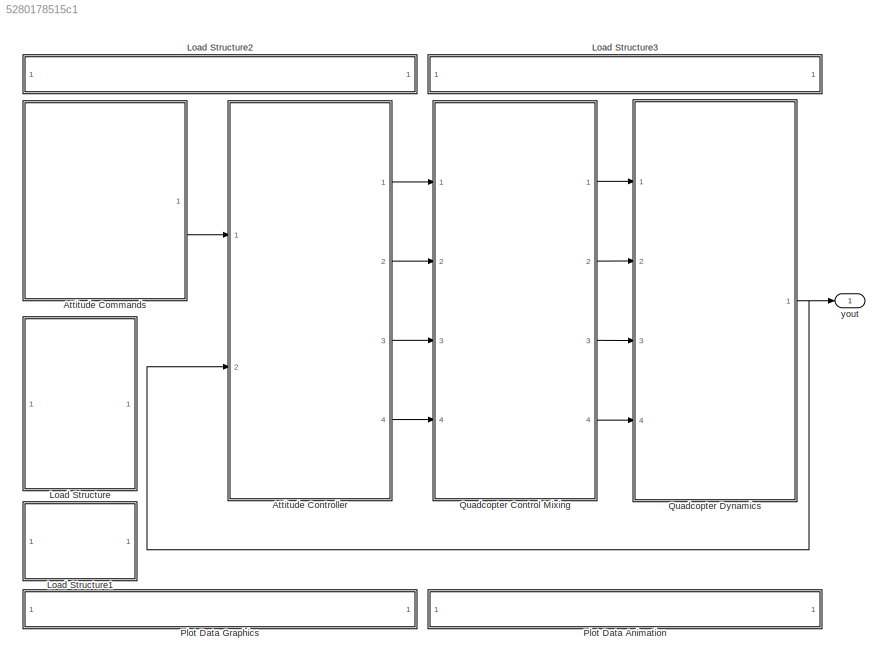
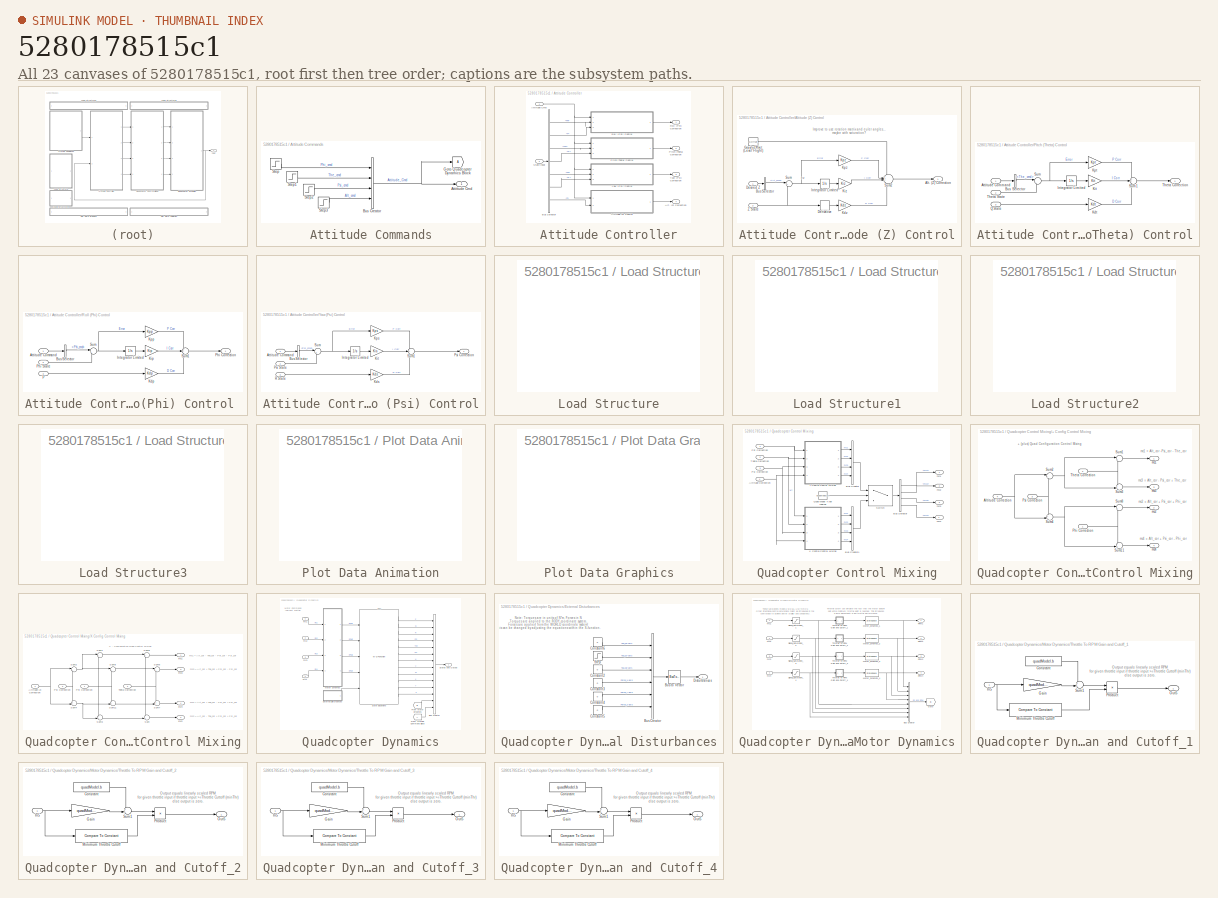
[diagram: thumbnail index - all 23 canvases of the model, root first then tree order]
MODEL slx_5280178515c1
KIND model
CONFIG AbsTol = auto
CONFIG FixedStep = 0.02
CONFIG MaxStep = 0.06
CONFIG MinStep = auto
CONFIG RelTol = 1e-3
CONFIG SampleTimeConstraint = Unconstrained
CONFIG Solver = ode45
CONFIG SolverMode = Auto
CONFIG SolverName = ode45
CONFIG StartTime = 0
CONFIG StopTime = 10
WORKSPACE source: MAT-file member
WORKSPACE MCOS: class17 (value not decoded)
BLOCK [SubSystem] Attitude Commands
  Ports = [0, 1]
  RequestExecContextInheritance = off
  Variant = off
BLOCK [Outport] Attitude Commands/Attittude Cmd
  IconDisplay = Port number
BLOCK [BusCreator] Attitude Commands/Bus Creator
  DisplayOption = bar
  InheritFromInputs = on
  Inputs = 4
  Ports = [4, 1]
BLOCK [Goto] Attitude Commands/Goto Quadcopter Dynamics Block
  TagVisibility = global
BLOCK [Step] Attitude Commands/Step
  After = -10*pi/180
  SampleTime = 0
  Time = 4
BLOCK [Step] Attitude Commands/Step1
  After = 10*pi/180
  SampleTime = 0
BLOCK [Step] Attitude Commands/Step2
  After = 45*pi/180
  SampleTime = 0
  Time = 7
BLOCK [Step] Attitude Commands/Step3
  After = 10*0.3048
  Before = 10*0.3048
  SampleTime = 0
  Time = 0
BLOCK [SubSystem] Attitude Controller
  Ports = [2, 4]
  RequestExecContextInheritance = off
  Variant = off
BLOCK [Outport] Attitude Controller/Alt. (Z) Correction
  IconDisplay = Port number
  Port = 4
BLOCK [SubSystem] Attitude Controller/Altitude (Z) Control
  Ports = [2, 1]
  RequestExecContextInheritance = off
  Variant = off
BLOCK [Outport] Attitude Controller/Altitude (Z) Control/Alt. (Z) Correction
  IconDisplay = Port number
BLOCK [BusSelector] Attitude Controller/Altitude (Z) Control/Bus Selector
  OutputSignals = Alt_cmd
  Ports = [1, 1]
BLOCK [Derivative] Attitude Controller/Altitude (Z) Control/Derivative
BLOCK [Inport] Attitude Controller/Altitude (Z) Control/Desired Z
  IconDisplay = Port number
BLOCK [Constant] Attitude Controller/Altitude (Z) Control/Gravity Offset (Level Flight)
  Value = GOffset
BLOCK [Integrator] Attitude Controller/Altitude (Z) Control/Integrator Limited
  LimitOutput = on
  LowerSaturationLimit = LSat
  Ports = [1, 1]
  UpperSaturationLimit = USat
BLOCK [Gain] Attitude Controller/Altitude (Z) Control/Kdz
  Gain = Kdz
  OutDataTypeStr = Inherit: Inherit via internal rule
  ParamDataTypeStr = Inherit: Inherit via internal rule
  SaturateOnIntegerOverflow = off
BLOCK [Gain] Attitude Controller/Altitude (Z) Control/Kiz
  Gain = Kiz
  OutDataTypeStr = Inherit: Inherit via internal rule
  ParamDataTypeStr = Inherit: Inherit via internal rule
  SaturateOnIntegerOverflow = off
BLOCK [Gain] Attitude Controller/Altitude (Z) Control/Kpz
  Gain = Kpz
  OutDataTypeStr = Inherit: Inherit via internal rule
  ParamDataTypeStr = Inherit: Inherit via internal rule
  SaturateOnIntegerOverflow = off
BLOCK [Sum] Attitude Controller/Altitude (Z) Control/Sum
  IconShape = round
  InputSameDT = off
  Inputs = |+-
  OutDataTypeStr = Inherit: Inherit via internal rule
  Ports = [2, 1]
  SaturateOnIntegerOverflow = off
BLOCK [Sum] Attitude Controller/Altitude (Z) Control/Sum2
  IconShape = round
  InputSameDT = off
  Inputs = +++-
  OutDataTypeStr = Inherit: Inherit via internal rule
  Ports = [4, 1]
  SaturateOnIntegerOverflow = off
BLOCK [Inport] Attitude Controller/Altitude (Z) Control/Z State
  IconDisplay = Port number
  Port = 2
BLOCK [Inport] Attitude Controller/Attitude Cmd
  IconDisplay = Port number
BLOCK [BusSelector] Attitude Controller/Bus Selector
  OutputSignals = Phi,P,The,Q,Psi,R,Z
  Ports = [1, 7]
BLOCK [SubSystem] Attitude Controller/Pitch (Theta) Control
  Ports = [3, 1]
  RequestExecContextInheritance = off
  Variant = off
BLOCK [Inport] Attitude Controller/Pitch (Theta) Control/Attitude Command
  IconDisplay = Port number
BLOCK [BusSelector] Attitude Controller/Pitch (Theta) Control/Bus Selector
  OutputSignals = The_cmd
  Ports = [1, 1]
BLOCK [Integrator] Attitude Controller/Pitch (Theta) Control/Integrator Limited
  LimitOutput = on
  LowerSaturationLimit = LSat
  Ports = [1, 1]
  UpperSaturationLimit = USat
BLOCK [Gain] Attitude Controller/Pitch (Theta) Control/Kdt
  Gain = Kdt
  OutDataTypeStr = Inherit: Inherit via internal rule
  ParamDataTypeStr = Inherit: Inherit via internal rule
  SaturateOnIntegerOverflow = off
BLOCK [Gain] Attitude Controller/Pitch (Theta) Control/Kit
  Gain = Kit
  OutDataTypeStr = Inherit: Inherit via internal rule
  ParamDataTypeStr = Inherit: Inherit via internal rule
  SaturateOnIntegerOverflow = off
BLOCK [Gain] Attitude Controller/Pitch (Theta) Control/Kpt
  Gain = Kpt
  OutDataTypeStr = Inherit: Inherit via internal rule
  ParamDataTypeStr = Inherit: Inherit via internal rule
  SaturateOnIntegerOverflow = off
BLOCK [Inport] Attitude Controller/Pitch (Theta) Control/Q State
  IconDisplay = Port number
  Port = 3
BLOCK [Sum] Attitude Controller/Pitch (Theta) Control/Sum
  IconShape = round
  InputSameDT = off
  Inputs = |+-
  OutDataTypeStr = Inherit: Inherit via internal rule
  Ports = [2, 1]
  SaturateOnIntegerOverflow = off
BLOCK [Sum] Attitude Controller/Pitch (Theta) Control/Sum1
  IconShape = round
  InputSameDT = off
  Inputs = ++-
  OutDataTypeStr = Inherit: Inherit via internal rule
  Ports = [3, 1]
  SaturateOnIntegerOverflow = off
BLOCK [Outport] Attitude Controller/Pitch (Theta) Control/Theta Correction
  IconDisplay = Port number
BLOCK [Inport] Attitude Controller/Pitch (Theta) Control/Theta State
  IconDisplay = Port number
  Port = 2
BLOCK [Outport] Attitude Controller/Pitch (Theta) Correction
  IconDisplay = Port number
  Port = 2
BLOCK [SubSystem] Attitude Controller/Roll (Phi) Control 
  Ports = [3, 1]
  RequestExecContextInheritance = off
  Variant = off
BLOCK [Inport] Attitude Controller/Roll (Phi) Control /Attitude Command 
  IconDisplay = Port number
BLOCK [BusSelector] Attitude Controller/Roll (Phi) Control /Bus Selector
  OutputSignals = Phi_cmd
  Ports = [1, 1]
BLOCK [Integrator] Attitude Controller/Roll (Phi) Control /Integrator Limited
  LimitOutput = on
  LowerSaturationLimit = LSat
  Ports = [1, 1]
  UpperSaturationLimit = USat
BLOCK [Gain] Attitude Controller/Roll (Phi) Control /Kdp
  Gain = Kdp
  OutDataTypeStr = Inherit: Inherit via internal rule
  ParamDataTypeStr = Inherit: Inherit via internal rule
  SaturateOnIntegerOverflow = off
BLOCK [Gain] Attitude Controller/Roll (Phi) Control /Kip
  Gain = Kip
  OutDataTypeStr = Inherit: Inherit via internal rule
  ParamDataTypeStr = Inherit: Inherit via internal rule
  SaturateOnIntegerOverflow = off
BLOCK [Gain] Attitude Controller/Roll (Phi) Control /Kpp
  Gain = Kpp
  OutDataTypeStr = Inherit: Inherit via internal rule
  ParamDataTypeStr = Inherit: Inherit via internal rule
  SaturateOnIntegerOverflow = off
BLOCK [Inport] Attitude Controller/Roll (Phi) Control /P
  IconDisplay = Port number
  Port = 3
BLOCK [Outport] Attitude Controller/Roll (Phi) Control /Phi Correction
  IconDisplay = Port number
BLOCK [Inport] Attitude Controller/Roll (Phi) Control /Phi State
  IconDisplay = Port number
  Port = 2
BLOCK [Sum] Attitude Controller/Roll (Phi) Control /Sum
  IconShape = round
  InputSameDT = off
  Inputs = |+-
  OutDataTypeStr = Inherit: Inherit via internal rule
  Ports = [2, 1]
  SaturateOnIntegerOverflow = off
BLOCK [Sum] Attitude Controller/Roll (Phi) Control /Sum1
  IconShape = round
  InputSameDT = off
  Inputs = ++-
  OutDataTypeStr = Inherit: Inherit via internal rule
  Ports = [3, 1]
  SaturateOnIntegerOverflow = off
BLOCK [Outport] Attitude Controller/Roll (Phi) Correction
  IconDisplay = Port number
BLOCK [Inport] Attitude Controller/State Input
  IconDisplay = Port number
  Port = 2
BLOCK [SubSystem] Attitude Controller/Yaw (Psi) Control
  Ports = [3, 1]
  RequestExecContextInheritance = off
  Variant = off
BLOCK [Inport] Attitude Controller/Yaw (Psi) Control/Attitude Command
  IconDisplay = Port number
BLOCK [BusSelector] Attitude Controller/Yaw (Psi) Control/Bus Selector
  OutputSignals = Psi_cmd
  Ports = [1, 1]
BLOCK [Integrator] Attitude Controller/Yaw (Psi) Control/Integrator Limited
  LimitOutput = on
  LowerSaturationLimit = LSat
  Ports = [1, 1]
  UpperSaturationLimit = USat
BLOCK [Gain] Attitude Controller/Yaw (Psi) Control/Kds
  Gain = Kds
  OutDataTypeStr = Inherit: Inherit via internal rule
  ParamDataTypeStr = Inherit: Inherit via internal rule
  SaturateOnIntegerOverflow = off
BLOCK [Gain] Attitude Controller/Yaw (Psi) Control/Kit
  Gain = Kis
  OutDataTypeStr = Inherit: Inherit via internal rule
  ParamDataTypeStr = Inherit: Inherit via internal rule
  SaturateOnIntegerOverflow = off
BLOCK [Gain] Attitude Controller/Yaw (Psi) Control/Kps
  Gain = Kps
  OutDataTypeStr = Inherit: Inherit via internal rule
  ParamDataTypeStr = Inherit: Inherit via internal rule
  SaturateOnIntegerOverflow = off
BLOCK [Outport] Attitude Controller/Yaw (Psi) Control/Psi Correction
  IconDisplay = Port number
BLOCK [Inport] Attitude Controller/Yaw (Psi) Control/Psi State
  IconDisplay = Port number
  Port = 2
BLOCK [Inport] Attitude Controller/Yaw (Psi) Control/R State
  IconDisplay = Port number
  Port = 3
BLOCK [Sum] Attitude Controller/Yaw (Psi) Control/Sum
  IconShape = round
  InputSameDT = off
  Inputs = |+-
  OutDataTypeStr = Inherit: Inherit via internal rule
  Ports = [2, 1]
  SaturateOnIntegerOverflow = off
BLOCK [Sum] Attitude Controller/Yaw (Psi) Control/Sum1
  IconShape = round
  InputSameDT = off
  Inputs = ++-
  OutDataTypeStr = Inherit: Inherit via internal rule
  Ports = [3, 1]
  SaturateOnIntegerOverflow = off
BLOCK [Outport] Attitude Controller/Yaw (Psi) Correction
  IconDisplay = Port number
  Port = 3
BLOCK [SubSystem] Load Structure
  OpenFcn = uiopen('load')                                  \nif (exist('IC')==1 && exist('quadModel')==1)    \nset_param(bdroot, 'SimulationCommand', 'update')\nend
  Ports = []
  RequestExecContextInheritance = off
  ShowPortLabels = FromPortBlockName
  Variant = off
BLOCK [SubSystem] Load Structure1
  OpenFcn = if (exist('IC')==1 && exist('quadModel')==1 && exist('yout') && exist('tout'))\nsaveSimResults()                                                              \nelse                                                                          \nmsgbox('No Data To Save!')                                                    \nend
  Ports = []
  RequestExecContextInheritance = off
  ShowPortLabels = FromPortBlockName
  Variant = off
BLOCK [SubSystem] Load Structure2
  OpenFcn = if exist('GUI_Modeling') == 2,                                \nrun('GUI_Modeling')                                           \n                                                              \nelse                                                          \n                                                              \nmsgbox('The desired GUI must be first added to MATLABs path.')\n                      ...<+44ch>
  Ports = []
  RequestExecContextInheritance = off
  ShowPortLabels = none
  Variant = off
BLOCK [SubSystem] Load Structure3
  OpenFcn = if exist('GUI_IC') == 2,                                      \nrun('GUI_IC')                                                 \n                                                              \nelse                                                          \n                                                              \nmsgbox('The desired GUI must be first added to MATLABs path.')\n                      ...<+44ch>
  Ports = []
  RequestExecContextInheritance = off
  ShowPortLabels = none
  Variant = off
BLOCK [SubSystem] Plot Data Animation
  OpenFcn = if exist('QuadAnim4') == 2,                                                                                                                 \n    if exist('yout')                                                                                                                        \n	run('QuadAnim4');                                                                                                    ...<+590ch>
  Ports = []
  RequestExecContextInheritance = off
  ShowPortLabels = FromPortBlockName
  Variant = off
BLOCK [SubSystem] Plot Data Graphics
  OpenFcn = if exist('yout')                                            \nyout = evalin('base', 'yout');                              \ntout = evalin('base', 'tout');                              \nquadPlots(yout, tout)                                       \nelse                                                        \nmsgbox('Simulation must be run before data can be plotted.')\nend
  Ports = []
  RequestExecContextInheritance = off
  ShowPortLabels = FromPortBlockName
  Variant = off
BLOCK [SubSystem] Quadcopter Control Mixing
  Ports = [4, 4]
  RequestExecContextInheritance = off
  Variant = off
BLOCK [SubSystem] Quadcopter Control Mixing/+ Config Control Mixing
  Ports = [4, 4]
  RequestExecContextInheritance = off
  Variant = off
BLOCK [Inport] Quadcopter Control Mixing/+ Config Control Mixing/Altitude Correction
  IconDisplay = Port number
  Port = 4
BLOCK [Inport] Quadcopter Control Mixing/+ Config Control Mixing/Phi Correction
  IconDisplay = Port number
BLOCK [Inport] Quadcopter Control Mixing/+ Config Control Mixing/Psi Correction
  IconDisplay = Port number
  Port = 3
BLOCK [Sum] Quadcopter Control Mixing/+ Config Control Mixing/Sum1
  IconShape = round
  InputSameDT = off
  Inputs = |+-
  OutDataTypeStr = Inherit: Inherit via internal rule
  Ports = [2, 1]
  SaturateOnIntegerOverflow = off
BLOCK [Sum] Quadcopter Control Mixing/+ Config Control Mixing/Sum11
  IconShape = round
  InputSameDT = off
  Inputs = -+|
  OutDataTypeStr = Inherit: Inherit via internal rule
  Ports = [2, 1]
  SaturateOnIntegerOverflow = off
BLOCK [Sum] Quadcopter Control Mixing/+ Config Control Mixing/Sum2
  IconShape = round
  InputSameDT = off
  Inputs = |+-
  OutDataTypeStr = Inherit: Inherit via internal rule
  Ports = [2, 1]
  SaturateOnIntegerOverflow = off
BLOCK [Sum] Quadcopter Control Mixing/+ Config Control Mixing/Sum3
  IconShape = round
  InputSameDT = off
  Inputs = ++|
  OutDataTypeStr = Inherit: Inherit via internal rule
  Ports = [2, 1]
  SaturateOnIntegerOverflow = off
BLOCK [Sum] Quadcopter Control Mixing/+ Config Control Mixing/Sum4
  IconShape = round
  InputSameDT = off
  Inputs = ++|
  OutDataTypeStr = Inherit: Inherit via internal rule
  Ports = [2, 1]
  SaturateOnIntegerOverflow = off
BLOCK [Sum] Quadcopter Control Mixing/+ Config Control Mixing/Sum8
  IconShape = round
  InputSameDT = off
  Inputs = |++
  OutDataTypeStr = Inherit: Inherit via internal rule
  Ports = [2, 1]
  SaturateOnIntegerOverflow = off
BLOCK [Inport] Quadcopter Control Mixing/+ Config Control Mixing/Theta Correction
  IconDisplay = Port number
  Port = 2
BLOCK [Outport] Quadcopter Control Mixing/+ Config Control Mixing/mc1
  IconDisplay = Port number
BLOCK [Outport] Quadcopter Control Mixing/+ Config Control Mixing/mc2
  IconDisplay = Port number
  Port = 2
BLOCK [Outport] Quadcopter Control Mixing/+ Config Control Mixing/mc3
  IconDisplay = Port number
  Port = 3
BLOCK [Outport] Quadcopter Control Mixing/+ Config Control Mixing/mc4
  IconDisplay = Port number
  Port = 4
BLOCK [Inport] Quadcopter Control Mixing/Altitude Correction
  IconDisplay = Port number
  Port = 4
BLOCK [BusCreator] Quadcopter Control Mixing/Bus Creator
  DisplayOption = bar
  InheritFromInputs = on
  Inputs = 4
  Ports = [4, 1]
BLOCK [BusCreator] Quadcopter Control Mixing/Bus Creator1
  DisplayOption = bar
  InheritFromInputs = on
  Inputs = 4
  Ports = [4, 1]
BLOCK [BusSelector] Quadcopter Control Mixing/Bus Selector
  OutputSignals = mc1,mc2,mc3,mc4
  Ports = [1, 4]
BLOCK [Inport] Quadcopter Control Mixing/Phi Correction
  IconDisplay = Port number
BLOCK [Inport] Quadcopter Control Mixing/Psi Correction
  IconDisplay = Port number
  Port = 3
BLOCK [Constant] Quadcopter Control Mixing/Quad Model Type Logical
  Value = quadModel.plusConfig
BLOCK [Switch] Quadcopter Control Mixing/Switch
  Criteria = u2 ~= 0
  InputSameDT = off
  SaturateOnIntegerOverflow = off
BLOCK [Inport] Quadcopter Control Mixing/Theta Correction
  IconDisplay = Port number
  Port = 2
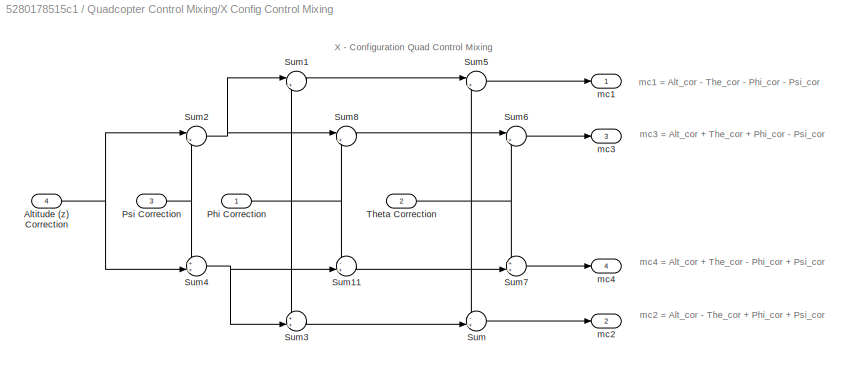
BLOCK [SubSystem] Quadcopter Control Mixing/X Config Control Mixing
  Ports = [4, 4]
  RequestExecContextInheritance = off
  Variant = off
BLOCK [Inport] Quadcopter Control Mixing/X Config Control Mixing/Altitude (z) Correction
  IconDisplay = Port number
  Port = 4
BLOCK [Inport] Quadcopter Control Mixing/X Config Control Mixing/Phi Correction
  IconDisplay = Port number
BLOCK [Inport] Quadcopter Control Mixing/X Config Control Mixing/Psi Correction
  IconDisplay = Port number
  Port = 3
BLOCK [Sum] Quadcopter Control Mixing/X Config Control Mixing/Sum
  IconShape = round
  InputSameDT = off
  Inputs = -+|
  OutDataTypeStr = Inherit: Inherit via internal rule
  Ports = [2, 1]
  SaturateOnIntegerOverflow = off
BLOCK [Sum] Quadcopter Control Mixing/X Config Control Mixing/Sum1
  IconShape = round
  InputSameDT = off
  Inputs = |+-
  OutDataTypeStr = Inherit: Inherit via internal rule
  Ports = [2, 1]
  SaturateOnIntegerOverflow = off
BLOCK [Sum] Quadcopter Control Mixing/X Config Control Mixing/Sum11
  IconShape = round
  InputSameDT = off
  Inputs = -+|
  OutDataTypeStr = Inherit: Inherit via internal rule
  Ports = [2, 1]
  SaturateOnIntegerOverflow = off
BLOCK [Sum] Quadcopter Control Mixing/X Config Control Mixing/Sum2
  IconShape = round
  InputSameDT = off
  Inputs = |+-
  OutDataTypeStr = Inherit: Inherit via internal rule
  Ports = [2, 1]
  SaturateOnIntegerOverflow = off
BLOCK [Sum] Quadcopter Control Mixing/X Config Control Mixing/Sum3
  IconShape = round
  InputSameDT = off
  Inputs = ++|
  OutDataTypeStr = Inherit: Inherit via internal rule
  Ports = [2, 1]
  SaturateOnIntegerOverflow = off
BLOCK [Sum] Quadcopter Control Mixing/X Config Control Mixing/Sum4
  IconShape = round
  InputSameDT = off
  Inputs = ++|
  OutDataTypeStr = Inherit: Inherit via internal rule
  Ports = [2, 1]
  SaturateOnIntegerOverflow = off
BLOCK [Sum] Quadcopter Control Mixing/X Config Control Mixing/Sum5
  IconShape = round
  InputSameDT = off
  Inputs = |+-
  OutDataTypeStr = Inherit: Inherit via internal rule
  Ports = [2, 1]
  SaturateOnIntegerOverflow = off
BLOCK [Sum] Quadcopter Control Mixing/X Config Control Mixing/Sum6
  IconShape = round
  InputSameDT = off
  Inputs = |++
  OutDataTypeStr = Inherit: Inherit via internal rule
  Ports = [2, 1]
  SaturateOnIntegerOverflow = off
BLOCK [Sum] Quadcopter Control Mixing/X Config Control Mixing/Sum7
  IconShape = round
  InputSameDT = off
  Inputs = ++|
  OutDataTypeStr = Inherit: Inherit via internal rule
  Ports = [2, 1]
  SaturateOnIntegerOverflow = off
BLOCK [Sum] Quadcopter Control Mixing/X Config Control Mixing/Sum8
  IconShape = round
  InputSameDT = off
  Inputs = |++
  OutDataTypeStr = Inherit: Inherit via internal rule
  Ports = [2, 1]
  SaturateOnIntegerOverflow = off
BLOCK [Inport] Quadcopter Control Mixing/X Config Control Mixing/Theta Correction
  IconDisplay = Port number
  Port = 2
BLOCK [Outport] Quadcopter Control Mixing/X Config Control Mixing/mc1
  IconDisplay = Port number
BLOCK [Outport] Quadcopter Control Mixing/X Config Control Mixing/mc2
  IconDisplay = Port number
  Port = 2
BLOCK [Outport] Quadcopter Control Mixing/X Config Control Mixing/mc3
  IconDisplay = Port number
  Port = 3
BLOCK [Outport] Quadcopter Control Mixing/X Config Control Mixing/mc4
  IconDisplay = Port number
  Port = 4
BLOCK [Outport] Quadcopter Control Mixing/mc1
  IconDisplay = Port number
BLOCK [Outport] Quadcopter Control Mixing/mc2
  IconDisplay = Port number
  Port = 2
BLOCK [Outport] Quadcopter Control Mixing/mc3
  IconDisplay = Port number
  Port = 3
BLOCK [Outport] Quadcopter Control Mixing/mc4
  IconDisplay = Port number
  Port = 4
BLOCK [SubSystem] Quadcopter Dynamics
  Ports = [4, 1]
  RequestExecContextInheritance = off
  Variant = off
BLOCK [BusCreator] Quadcopter Dynamics/Bus Creator
  DisplayOption = bar
  InheritFromInputs = on
  Inputs = 'P','Q','R','Phi','The','Psi','U','V','W','X','Y','Z','mc and RPM','Attitude_Cmd'
  Ports = [14, 1]
BLOCK [SubSystem] Quadcopter Dynamics/External Disturbances
  Ports = [0, 1]
  RequestExecContextInheritance = off
  Variant = off
BLOCK [BusCreator] Quadcopter Dynamics/External Disturbances/Bus Creator
  DisplayOption = bar
  InheritFromInputs = on
  Inputs = 6
  Ports = [6, 1]
BLOCK [BusToVector] Quadcopter Dynamics/External Disturbances/Bus to Vector
BLOCK [Constant] Quadcopter Dynamics/External Disturbances/Constant2
  Value = 0
BLOCK [Constant] Quadcopter Dynamics/External Disturbances/Constant3
  Value = 0
BLOCK [Constant] Quadcopter Dynamics/External Disturbances/Constant4
  Value = 0
BLOCK [Constant] Quadcopter Dynamics/External Disturbances/Constant5
  Value = 0
BLOCK [Constant] Quadcopter Dynamics/External Disturbances/Constant6
  Value = 0
BLOCK [Outport] Quadcopter Dynamics/External Disturbances/Disturbances 
  IconDisplay = Port number
BLOCK [Step] Quadcopter Dynamics/External Disturbances/Step
  After = 0
  SampleTime = 0
BLOCK [From] Quadcopter Dynamics/From Attitude Command Block
  TagVisibility = global
BLOCK [From] Quadcopter Dynamics/From Motor Dynamics
  GotoTag = B
  TagVisibility = global
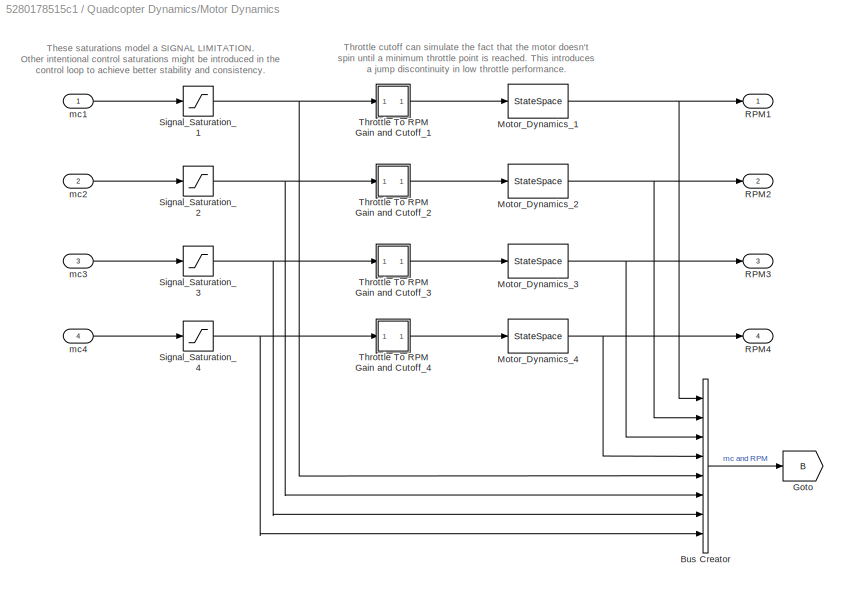
BLOCK [SubSystem] Quadcopter Dynamics/Motor Dynamics
  Ports = [4, 4]
  RequestExecContextInheritance = off
  Variant = off
BLOCK [BusCreator] Quadcopter Dynamics/Motor Dynamics/Bus Creator
  DisplayOption = bar
  InheritFromInputs = on
  Inputs = 8
  Ports = [8, 1]
BLOCK [Goto] Quadcopter Dynamics/Motor Dynamics/Goto
  GotoTag = B
  TagVisibility = global
BLOCK [StateSpace] Quadcopter Dynamics/Motor Dynamics/Motor_Dynamics_1
  A = -1/quadModel.T
  C = 1/quadModel.T
  D = 0
  Ports = [1, 1]
  X0 = IC.w1*quadModel.T
BLOCK [StateSpace] Quadcopter Dynamics/Motor Dynamics/Motor_Dynamics_2
  A = -1/quadModel.T
  C = 1/quadModel.T
  D = 0
  Ports = [1, 1]
  X0 = IC.w2*quadModel.T
BLOCK [StateSpace] Quadcopter Dynamics/Motor Dynamics/Motor_Dynamics_3
  A = -1/quadModel.T
  C = 1/quadModel.T
  D = 0
  Ports = [1, 1]
  X0 = IC.w3*quadModel.T
BLOCK [StateSpace] Quadcopter Dynamics/Motor Dynamics/Motor_Dynamics_4
  A = -1/quadModel.T
  C = 1/quadModel.T
  D = 0
  Ports = [1, 1]
  X0 = IC.w4*quadModel.T
BLOCK [Outport] Quadcopter Dynamics/Motor Dynamics/RPM1
  IconDisplay = Port number
BLOCK [Outport] Quadcopter Dynamics/Motor Dynamics/RPM2
  IconDisplay = Port number
  Port = 2
BLOCK [Outport] Quadcopter Dynamics/Motor Dynamics/RPM3
  IconDisplay = Port number
  Port = 3
BLOCK [Outport] Quadcopter Dynamics/Motor Dynamics/RPM4
  IconDisplay = Port number
  Port = 4
BLOCK [Saturate] Quadcopter Dynamics/Motor Dynamics/Signal_Saturation_1
  InputPortMap = u0
  LowerLimit = 0
  Ports = [1, 1]
  UpperLimit = 100
BLOCK [Saturate] Quadcopter Dynamics/Motor Dynamics/Signal_Saturation_2
  InputPortMap = u0
  LowerLimit = 0
  Ports = [1, 1]
  UpperLimit = 100
BLOCK [Saturate] Quadcopter Dynamics/Motor Dynamics/Signal_Saturation_3
  InputPortMap = u0
  LowerLimit = 0
  Ports = [1, 1]
  UpperLimit = 100
BLOCK [Saturate] Quadcopter Dynamics/Motor Dynamics/Signal_Saturation_4
  InputPortMap = u0
  LowerLimit = 0
  Ports = [1, 1]
  UpperLimit = 100
BLOCK [SubSystem] Quadcopter Dynamics/Motor Dynamics/Throttle To RPM Gain and Cutoff_1
  Ports = [1, 1]
  RequestExecContextInheritance = off
  ShowPortLabels = none
  Variant = off
BLOCK [Constant] Quadcopter Dynamics/Motor Dynamics/Throttle To RPM Gain and Cutoff_1/Constant
  Value = quadModel.b
BLOCK [Gain] Quadcopter Dynamics/Motor Dynamics/Throttle To RPM Gain and Cutoff_1/Gain
  Gain = quadModel.cr
  OutDataTypeStr = Inherit: Inherit via internal rule
  ParamDataTypeStr = Inherit: Inherit via internal rule
  SaturateOnIntegerOverflow = off
BLOCK [Inport] Quadcopter Dynamics/Motor Dynamics/Throttle To RPM Gain and Cutoff_1/In5
  IconDisplay = Port number
BLOCK [Reference] Quadcopter Dynamics/Motor Dynamics/Throttle To RPM Gain and Cutoff_1/Minimum Throttle Cutoff  REF=simulink/Logic and Bit
Operations/Compare
To Constant
  Ports = [1, 1]
  SourceBlock = simulink/Logic and Bit\nOperations/Compare\nTo Constant
  SourceType = Compare To Constant
BLOCK [Outport] Quadcopter Dynamics/Motor Dynamics/Throttle To RPM Gain and Cutoff_1/Out5
  IconDisplay = Port number
BLOCK [Product] Quadcopter Dynamics/Motor Dynamics/Throttle To RPM Gain and Cutoff_1/Product
  InputSameDT = off
  OutDataTypeStr = Inherit: Inherit via internal rule
  Ports = [2, 1]
  RndMeth = Floor
  SaturateOnIntegerOverflow = off
BLOCK [Sum] Quadcopter Dynamics/Motor Dynamics/Throttle To RPM Gain and Cutoff_1/Sum1
  IconShape = round
  InputSameDT = off
  Inputs = ++|
  OutDataTypeStr = Inherit: Inherit via internal rule
  Ports = [2, 1]
  SaturateOnIntegerOverflow = off
BLOCK [SubSystem] Quadcopter Dynamics/Motor Dynamics/Throttle To RPM Gain and Cutoff_2
  Ports = [1, 1]
  RequestExecContextInheritance = off
  ShowPortLabels = none
  Variant = off
BLOCK [Constant] Quadcopter Dynamics/Motor Dynamics/Throttle To RPM Gain and Cutoff_2/Constant
  Value = quadModel.b
BLOCK [Gain] Quadcopter Dynamics/Motor Dynamics/Throttle To RPM Gain and Cutoff_2/Gain
  Gain = quadModel.cr
  OutDataTypeStr = Inherit: Inherit via internal rule
  ParamDataTypeStr = Inherit: Inherit via internal rule
  SaturateOnIntegerOverflow = off
BLOCK [Inport] Quadcopter Dynamics/Motor Dynamics/Throttle To RPM Gain and Cutoff_2/In5
  IconDisplay = Port number
BLOCK [Reference] Quadcopter Dynamics/Motor Dynamics/Throttle To RPM Gain and Cutoff_2/Minimum Throttle Cutoff  REF=simulink/Logic and Bit
Operations/Compare
To Constant
  Ports = [1, 1]
  SourceBlock = simulink/Logic and Bit\nOperations/Compare\nTo Constant
  SourceType = Compare To Constant
BLOCK [Outport] Quadcopter Dynamics/Motor Dynamics/Throttle To RPM Gain and Cutoff_2/Out5
  IconDisplay = Port number
BLOCK [Product] Quadcopter Dynamics/Motor Dynamics/Throttle To RPM Gain and Cutoff_2/Product
  InputSameDT = off
  OutDataTypeStr = Inherit: Inherit via internal rule
  Ports = [2, 1]
  RndMeth = Floor
  SaturateOnIntegerOverflow = off
BLOCK [Sum] Quadcopter Dynamics/Motor Dynamics/Throttle To RPM Gain and Cutoff_2/Sum1
  IconShape = round
  InputSameDT = off
  Inputs = ++|
  OutDataTypeStr = Inherit: Inherit via internal rule
  Ports = [2, 1]
  SaturateOnIntegerOverflow = off
BLOCK [SubSystem] Quadcopter Dynamics/Motor Dynamics/Throttle To RPM Gain and Cutoff_3
  Ports = [1, 1]
  RequestExecContextInheritance = off
  ShowPortLabels = none
  Variant = off
BLOCK [Constant] Quadcopter Dynamics/Motor Dynamics/Throttle To RPM Gain and Cutoff_3/Constant
  Value = quadModel.b
BLOCK [Gain] Quadcopter Dynamics/Motor Dynamics/Throttle To RPM Gain and Cutoff_3/Gain
  Gain = quadModel.cr
  OutDataTypeStr = Inherit: Inherit via internal rule
  ParamDataTypeStr = Inherit: Inherit via internal rule
  SaturateOnIntegerOverflow = off
BLOCK [Inport] Quadcopter Dynamics/Motor Dynamics/Throttle To RPM Gain and Cutoff_3/In5
  IconDisplay = Port number
BLOCK [Reference] Quadcopter Dynamics/Motor Dynamics/Throttle To RPM Gain and Cutoff_3/Minimum Throttle Cutoff  REF=simulink/Logic and Bit
Operations/Compare
To Constant
  Ports = [1, 1]
  SourceBlock = simulink/Logic and Bit\nOperations/Compare\nTo Constant
  SourceType = Compare To Constant
BLOCK [Outport] Quadcopter Dynamics/Motor Dynamics/Throttle To RPM Gain and Cutoff_3/Out5
  IconDisplay = Port number
BLOCK [Product] Quadcopter Dynamics/Motor Dynamics/Throttle To RPM Gain and Cutoff_3/Product
  InputSameDT = off
  OutDataTypeStr = Inherit: Inherit via internal rule
  Ports = [2, 1]
  RndMeth = Floor
  SaturateOnIntegerOverflow = off
BLOCK [Sum] Quadcopter Dynamics/Motor Dynamics/Throttle To RPM Gain and Cutoff_3/Sum1
  IconShape = round
  InputSameDT = off
  Inputs = ++|
  OutDataTypeStr = Inherit: Inherit via internal rule
  Ports = [2, 1]
  SaturateOnIntegerOverflow = off
BLOCK [SubSystem] Quadcopter Dynamics/Motor Dynamics/Throttle To RPM Gain and Cutoff_4
  Ports = [1, 1]
  RequestExecContextInheritance = off
  ShowPortLabels = none
  Variant = off
BLOCK [Constant] Quadcopter Dynamics/Motor Dynamics/Throttle To RPM Gain and Cutoff_4/Constant
  Value = quadModel.b
BLOCK [Gain] Quadcopter Dynamics/Motor Dynamics/Throttle To RPM Gain and Cutoff_4/Gain
  Gain = quadModel.cr
  OutDataTypeStr = Inherit: Inherit via internal rule
  ParamDataTypeStr = Inherit: Inherit via internal rule
  SaturateOnIntegerOverflow = off
BLOCK [Inport] Quadcopter Dynamics/Motor Dynamics/Throttle To RPM Gain and Cutoff_4/In5
  IconDisplay = Port number
BLOCK [Reference] Quadcopter Dynamics/Motor Dynamics/Throttle To RPM Gain and Cutoff_4/Minimum Throttle Cutoff  REF=simulink/Logic and Bit
Operations/Compare
To Constant
  Ports = [1, 1]
  SourceBlock = simulink/Logic and Bit\nOperations/Compare\nTo Constant
  SourceType = Compare To Constant
BLOCK [Outport] Quadcopter Dynamics/Motor Dynamics/Throttle To RPM Gain and Cutoff_4/Out5
  IconDisplay = Port number
BLOCK [Product] Quadcopter Dynamics/Motor Dynamics/Throttle To RPM Gain and Cutoff_4/Product
  InputSameDT = off
  OutDataTypeStr = Inherit: Inherit via internal rule
  Ports = [2, 1]
  RndMeth = Floor
  SaturateOnIntegerOverflow = off
BLOCK [Sum] Quadcopter Dynamics/Motor Dynamics/Throttle To RPM Gain and Cutoff_4/Sum1
  IconShape = round
  InputSameDT = off
  Inputs = ++|
  OutDataTypeStr = Inherit: Inherit via internal rule
  Ports = [2, 1]
  SaturateOnIntegerOverflow = off
BLOCK [Inport] Quadcopter Dynamics/Motor Dynamics/mc1
  IconDisplay = Port number
BLOCK [Inport] Quadcopter Dynamics/Motor Dynamics/mc2
  IconDisplay = Port number
  Port = 2
BLOCK [Inport] Quadcopter Dynamics/Motor Dynamics/mc3
  IconDisplay = Port number
  Port = 3
BLOCK [Inport] Quadcopter Dynamics/Motor Dynamics/mc4
  IconDisplay = Port number
  Port = 4
BLOCK [M-S-Function] Quadcopter Dynamics/State Equations
  FunctionName = quadcopterDynamicsSFunction
  Parameters = quadModel, IC
  Ports = [5, 12]
BLOCK [Outport] Quadcopter Dynamics/States and Output
  IconDisplay = Port number
BLOCK [Inport] Quadcopter Dynamics/mc1
  IconDisplay = Port number
BLOCK [Inport] Quadcopter Dynamics/mc2
  IconDisplay = Port number
  Port = 2
BLOCK [Inport] Quadcopter Dynamics/mc3
  IconDisplay = Port number
  Port = 3
BLOCK [Inport] Quadcopter Dynamics/mc4
  IconDisplay = Port number
  Port = 4
BLOCK [Outport] yout
  IconDisplay = Port number
ANNOTATION Attitude Controller/Altitude (Z) Control: Improve to use rotation matrix and euler angles... maybe with saturation?
ANNOTATION Attitude Controller/Altitude (Z) Control: ez
ANNOTATION Quadcopter Control Mixing/+ Config Control Mixing: + (plus) Quad Configuration Control Mixing
ANNOTATION Quadcopter Control Mixing/+ Config Control Mixing: mc1 = Alt_cor -Psi_cor - The_cor
ANNOTATION Quadcopter Control Mixing/+ Config Control Mixing: mc2 = Alt_cor + Psi_cor + Phi_cor
ANNOTATION Quadcopter Control Mixing/+ Config Control Mixing: mc3 = Alt_cor - Psi_cor + The_cor
ANNOTATION Quadcopter Control Mixing/+ Config Control Mixing: mc4 = Alt_cor + Psi_cor - Phi_cor
ANNOTATION Quadcopter Control Mixing/X Config Control Mixing: X - Configuration Quad Control Mixing
ANNOTATION Quadcopter Control Mixing/X Config Control Mixing: mc1 = Alt_cor - The_cor - Phi_cor - Psi_cor
ANNOTATION Quadcopter Control Mixing/X Config Control Mixing: mc2 = Alt_cor - The_cor + Phi_cor + Psi_cor
ANNOTATION Quadcopter Control Mixing/X Config Control Mixing: mc3 = Alt_cor + The_cor + Phi_cor - Psi_cor
ANNOTATION Quadcopter Control Mixing/X Config Control Mixing: mc4 = Alt_cor + The_cor - Phi_cor + Psi_cor
ANNOTATION Quadcopter Dynamics: Motor Commands (Percent Thottle)
ANNOTATION Quadcopter Dynamics: RPM
ANNOTATION Quadcopter Dynamics/External Disturbances: Note: Torques are in units of N*m, Forces in N Torques are applied to the BODY coordinate system. Forces are applied from the WORLD coordinate system! This can be changed by adjusting the equations within the S-function.
ANNOTATION Quadcopter Dynamics/Motor Dynamics: These saturations model a SIGNAL LIMITATION. Other intentional control saturations might be introduced in the control loop to achieve better stability and consistency.
ANNOTATION Quadcopter Dynamics/Motor Dynamics: Throttle cutoff can simulate the fact that the motor doesn't spin until a minimum throttle point is reached. This introduces a jump discontinuity in low throttle performance.
ANNOTATION Quadcopter Dynamics/Motor Dynamics/Throttle To RPM Gain and Cutoff_1: Output equals linearly scaled RPM for given throttle input if throttle input >=Throttle Cuttoff (minThr) else output is zero.
ANNOTATION Quadcopter Dynamics/Motor Dynamics/Throttle To RPM Gain and Cutoff_2: Output equals linearly scaled RPM for given throttle input if throttle input >=Throttle Cuttoff (minThr) else output is zero.
ANNOTATION Quadcopter Dynamics/Motor Dynamics/Throttle To RPM Gain and Cutoff_3: Output equals linearly scaled RPM for given throttle input if throttle input >=Throttle Cuttoff (minThr) else output is zero.
ANNOTATION Quadcopter Dynamics/Motor Dynamics/Throttle To RPM Gain and Cutoff_4: Output equals linearly scaled RPM for given throttle input if throttle input >=Throttle Cuttoff (minThr) else output is zero.
NET Attitude Commands/Bus Creator:1 -> Attitude Commands/Attittude Cmd:1, Attitude Commands/Goto Quadcopter Dynamics Block:1
LINE Attitude Commands/Step1:1 -> Attitude Commands/Bus Creator:2
LINE Attitude Commands/Step2:1 -> Attitude Commands/Bus Creator:3
LINE Attitude Commands/Step3:1 -> Attitude Commands/Bus Creator:4
LINE Attitude Commands/Step:1 -> Attitude Commands/Bus Creator:1
LINE Attitude Commands:1 -> Attitude Controller:1
LINE Attitude Controller/Altitude (Z) Control/Bus Selector:1 -> Attitude Controller/Altitude (Z) Control/Sum:1
LINE Attitude Controller/Altitude (Z) Control/Derivative:1 -> Attitude Controller/Altitude (Z) Control/Kdz:1
LINE Attitude Controller/Altitude (Z) Control/Desired Z:1 -> Attitude Controller/Altitude (Z) Control/Bus Selector:1
LINE Attitude Controller/Altitude (Z) Control/Gravity Offset (Level Flight):1 -> Attitude Controller/Altitude (Z) Control/Sum2:1
LINE Attitude Controller/Altitude (Z) Control/Integrator Limited:1 -> Attitude Controller/Altitude (Z) Control/Kiz:1
LINE Attitude Controller/Altitude (Z) Control/Kdz:1 -> Attitude Controller/Altitude (Z) Control/Sum2:4
LINE Attitude Controller/Altitude (Z) Control/Kiz:1 -> Attitude Controller/Altitude (Z) Control/Sum2:3
LINE Attitude Controller/Altitude (Z) Control/Kpz:1 -> Attitude Controller/Altitude (Z) Control/Sum2:2
LINE Attitude Controller/Altitude (Z) Control/Sum2:1 -> Attitude Controller/Altitude (Z) Control/Alt. (Z) Correction:1
NET Attitude Controller/Altitude (Z) Control/Sum:1 -> Attitude Controller/Altitude (Z) Control/Integrator Limited:1, Attitude Controller/Altitude (Z) Control/Kpz:1
NET Attitude Controller/Altitude (Z) Control/Z State:1 -> Attitude Controller/Altitude (Z) Control/Derivative:1, Attitude Controller/Altitude (Z) Control/Sum:2
LINE Attitude Controller/Altitude (Z) Control:1 -> Attitude Controller/Alt. (Z) Correction:1
NET Attitude Controller/Attitude Cmd:1 -> Attitude Controller/Altitude (Z) Control:1, Attitude Controller/Pitch (Theta) Control:1, Attitude Controller/Roll (Phi) Control :1, Attitude Controller/Yaw (Psi) Control:1
LINE Attitude Controller/Bus Selector:1 -> Attitude Controller/Roll (Phi) Control :2
LINE Attitude Controller/Bus Selector:2 -> Attitude Controller/Roll (Phi) Control :3
LINE Attitude Controller/Bus Selector:3 -> Attitude Controller/Pitch (Theta) Control:2
LINE Attitude Controller/Bus Selector:4 -> Attitude Controller/Pitch (Theta) Control:3
LINE Attitude Controller/Bus Selector:5 -> Attitude Controller/Yaw (Psi) Control:2
LINE Attitude Controller/Bus Selector:6 -> Attitude Controller/Yaw (Psi) Control:3
LINE Attitude Controller/Bus Selector:7 -> Attitude Controller/Altitude (Z) Control:2
LINE Attitude Controller/Pitch (Theta) Control/Attitude Command:1 -> Attitude Controller/Pitch (Theta) Control/Bus Selector:1
LINE Attitude Controller/Pitch (Theta) Control/Bus Selector:1 -> Attitude Controller/Pitch (Theta) Control/Sum:1
LINE Attitude Controller/Pitch (Theta) Control/Integrator Limited:1 -> Attitude Controller/Pitch (Theta) Control/Kit:1
LINE Attitude Controller/Pitch (Theta) Control/Kdt:1 -> Attitude Controller/Pitch (Theta) Control/Sum1:3
LINE Attitude Controller/Pitch (Theta) Control/Kit:1 -> Attitude Controller/Pitch (Theta) Control/Sum1:2
LINE Attitude Controller/Pitch (Theta) Control/Kpt:1 -> Attitude Controller/Pitch (Theta) Control/Sum1:1
LINE Attitude Controller/Pitch (Theta) Control/Q State:1 -> Attitude Controller/Pitch (Theta) Control/Kdt:1
LINE Attitude Controller/Pitch (Theta) Control/Sum1:1 -> Attitude Controller/Pitch (Theta) Control/Theta Correction:1
NET Attitude Controller/Pitch (Theta) Control/Sum:1 -> Attitude Controller/Pitch (Theta) Control/Integrator Limited:1, Attitude Controller/Pitch (Theta) Control/Kpt:1
LINE Attitude Controller/Pitch (Theta) Control/Theta State:1 -> Attitude Controller/Pitch (Theta) Control/Sum:2
LINE Attitude Controller/Pitch (Theta) Control:1 -> Attitude Controller/Pitch (Theta) Correction:1
LINE Attitude Controller/Roll (Phi) Control /Attitude Command :1 -> Attitude Controller/Roll (Phi) Control /Bus Selector:1
LINE Attitude Controller/Roll (Phi) Control /Bus Selector:1 -> Attitude Controller/Roll (Phi) Control /Sum:1
LINE Attitude Controller/Roll (Phi) Control /Integrator Limited:1 -> Attitude Controller/Roll (Phi) Control /Kip:1
LINE Attitude Controller/Roll (Phi) Control /Kdp:1 -> Attitude Controller/Roll (Phi) Control /Sum1:3
LINE Attitude Controller/Roll (Phi) Control /Kip:1 -> Attitude Controller/Roll (Phi) Control /Sum1:2
LINE Attitude Controller/Roll (Phi) Control /Kpp:1 -> Attitude Controller/Roll (Phi) Control /Sum1:1
LINE Attitude Controller/Roll (Phi) Control /P:1 -> Attitude Controller/Roll (Phi) Control /Kdp:1
LINE Attitude Controller/Roll (Phi) Control /Phi State:1 -> Attitude Controller/Roll (Phi) Control /Sum:2
LINE Attitude Controller/Roll (Phi) Control /Sum1:1 -> Attitude Controller/Roll (Phi) Control /Phi Correction:1
NET Attitude Controller/Roll (Phi) Control /Sum:1 -> Attitude Controller/Roll (Phi) Control /Integrator Limited:1, Attitude Controller/Roll (Phi) Control /Kpp:1
LINE Attitude Controller/Roll (Phi) Control :1 -> Attitude Controller/Roll (Phi) Correction:1
LINE Attitude Controller/State Input:1 -> Attitude Controller/Bus Selector:1
LINE Attitude Controller/Yaw (Psi) Control/Attitude Command:1 -> Attitude Controller/Yaw (Psi) Control/Bus Selector:1
LINE Attitude Controller/Yaw (Psi) Control/Bus Selector:1 -> Attitude Controller/Yaw (Psi) Control/Sum:1
LINE Attitude Controller/Yaw (Psi) Control/Integrator Limited:1 -> Attitude Controller/Yaw (Psi) Control/Kit:1
LINE Attitude Controller/Yaw (Psi) Control/Kds:1 -> Attitude Controller/Yaw (Psi) Control/Sum1:3
LINE Attitude Controller/Yaw (Psi) Control/Kit:1 -> Attitude Controller/Yaw (Psi) Control/Sum1:2
LINE Attitude Controller/Yaw (Psi) Control/Kps:1 -> Attitude Controller/Yaw (Psi) Control/Sum1:1
LINE Attitude Controller/Yaw (Psi) Control/Psi State:1 -> Attitude Controller/Yaw (Psi) Control/Sum:2
LINE Attitude Controller/Yaw (Psi) Control/R State:1 -> Attitude Controller/Yaw (Psi) Control/Kds:1
LINE Attitude Controller/Yaw (Psi) Control/Sum1:1 -> Attitude Controller/Yaw (Psi) Control/Psi Correction:1
NET Attitude Controller/Yaw (Psi) Control/Sum:1 -> Attitude Controller/Yaw (Psi) Control/Integrator Limited:1, Attitude Controller/Yaw (Psi) Control/Kps:1
LINE Attitude Controller/Yaw (Psi) Control:1 -> Attitude Controller/Yaw (Psi) Correction:1
LINE Attitude Controller:1 -> Quadcopter Control Mixing:1
LINE Attitude Controller:2 -> Quadcopter Control Mixing:2
LINE Attitude Controller:3 -> Quadcopter Control Mixing:3
LINE Attitude Controller:4 -> Quadcopter Control Mixing:4
NET Quadcopter Control Mixing/+ Config Control Mixing/Altitude Correction:1 -> Quadcopter Control Mixing/+ Config Control Mixing/Sum2:1, Quadcopter Control Mixing/+ Config Control Mixing/Sum4:2
NET Quadcopter Control Mixing/+ Config Control Mixing/Phi Correction:1 -> Quadcopter Control Mixing/+ Config Control Mixing/Sum11:1, Quadcopter Control Mixing/+ Config Control Mixing/Sum8:2
NET Quadcopter Control Mixing/+ Config Control Mixing/Psi Correction:1 -> Quadcopter Control Mixing/+ Config Control Mixing/Sum2:2, Quadcopter Control Mixing/+ Config Control Mixing/Sum4:1
LINE Quadcopter Control Mixing/+ Config Control Mixing/Sum11:1 -> Quadcopter Control Mixing/+ Config Control Mixing/mc4:1
LINE Quadcopter Control Mixing/+ Config Control Mixing/Sum1:1 -> Quadcopter Control Mixing/+ Config Control Mixing/mc1:1
NET Quadcopter Control Mixing/+ Config Control Mixing/Sum2:1 -> Quadcopter Control Mixing/+ Config Control Mixing/Sum1:1, Quadcopter Control Mixing/+ Config Control Mixing/Sum3:2
LINE Quadcopter Control Mixing/+ Config Control Mixing/Sum3:1 -> Quadcopter Control Mixing/+ Config Control Mixing/mc3:1
NET Quadcopter Control Mixing/+ Config Control Mixing/Sum4:1 -> Quadcopter Control Mixing/+ Config Control Mixing/Sum11:2, Quadcopter Control Mixing/+ Config Control Mixing/Sum8:1
LINE Quadcopter Control Mixing/+ Config Control Mixing/Sum8:1 -> Quadcopter Control Mixing/+ Config Control Mixing/mc2:1
NET Quadcopter Control Mixing/+ Config Control Mixing/Theta Correction:1 -> Quadcopter Control Mixing/+ Config Control Mixing/Sum1:2, Quadcopter Control Mixing/+ Config Control Mixing/Sum3:1
LINE Quadcopter Control Mixing/+ Config Control Mixing:1 -> Quadcopter Control Mixing/Bus Creator:1
LINE Quadcopter Control Mixing/+ Config Control Mixing:2 -> Quadcopter Control Mixing/Bus Creator:2
LINE Quadcopter Control Mixing/+ Config Control Mixing:3 -> Quadcopter Control Mixing/Bus Creator:3
LINE Quadcopter Control Mixing/+ Config Control Mixing:4 -> Quadcopter Control Mixing/Bus Creator:4
NET Quadcopter Control Mixing/Altitude Correction:1 -> Quadcopter Control Mixing/+ Config Control Mixing:4, Quadcopter Control Mixing/X Config Control Mixing:4
LINE Quadcopter Control Mixing/Bus Creator1:1 -> Quadcopter Control Mixing/Switch:3
LINE Quadcopter Control Mixing/Bus Creator:1 -> Quadcopter Control Mixing/Switch:1
LINE Quadcopter Control Mixing/Bus Selector:1 -> Quadcopter Control Mixing/mc1:1
LINE Quadcopter Control Mixing/Bus Selector:2 -> Quadcopter Control Mixing/mc2:1
LINE Quadcopter Control Mixing/Bus Selector:3 -> Quadcopter Control Mixing/mc3:1
LINE Quadcopter Control Mixing/Bus Selector:4 -> Quadcopter Control Mixing/mc4:1
NET Quadcopter Control Mixing/Phi Correction:1 -> Quadcopter Control Mixing/+ Config Control Mixing:1, Quadcopter Control Mixing/X Config Control Mixing:1
NET Quadcopter Control Mixing/Psi Correction:1 -> Quadcopter Control Mixing/+ Config Control Mixing:3, Quadcopter Control Mixing/X Config Control Mixing:3
LINE Quadcopter Control Mixing/Quad Model Type Logical:1 -> Quadcopter Control Mixing/Switch:2
LINE Quadcopter Control Mixing/Switch:1 -> Quadcopter Control Mixing/Bus Selector:1
NET Quadcopter Control Mixing/Theta Correction:1 -> Quadcopter Control Mixing/+ Config Control Mixing:2, Quadcopter Control Mixing/X Config Control Mixing:2
NET Quadcopter Control Mixing/X Config Control Mixing/Altitude (z) Correction:1 -> Quadcopter Control Mixing/X Config Control Mixing/Sum2:1, Quadcopter Control Mixing/X Config Control Mixing/Sum4:2
NET Quadcopter Control Mixing/X Config Control Mixing/Phi Correction:1 -> Quadcopter Control Mixing/X Config Control Mixing/Sum11:1, Quadcopter Control Mixing/X Config Control Mixing/Sum1:2, Quadcopter Control Mixing/X Config Control Mixing/Sum3:1, Quadcopter Control Mixing/X Config Control Mixing/Sum8:2
NET Quadcopter Control Mixing/X Config Control Mixing/Psi Correction:1 -> Quadcopter Control Mixing/X Config Control Mixing/Sum2:2, Quadcopter Control Mixing/X Config Control Mixing/Sum4:1
LINE Quadcopter Control Mixing/X Config Control Mixing/Sum11:1 -> Quadcopter Control Mixing/X Config Control Mixing/Sum7:2
LINE Quadcopter Control Mixing/X Config Control Mixing/Sum1:1 -> Quadcopter Control Mixing/X Config Control Mixing/Sum5:1
NET Quadcopter Control Mixing/X Config Control Mixing/Sum2:1 -> Quadcopter Control Mixing/X Config Control Mixing/Sum1:1, Quadcopter Control Mixing/X Config Control Mixing/Sum8:1
LINE Quadcopter Control Mixing/X Config Control Mixing/Sum3:1 -> Quadcopter Control Mixing/X Config Control Mixing/Sum:2
NET Quadcopter Control Mixing/X Config Control Mixing/Sum4:1 -> Quadcopter Control Mixing/X Config Control Mixing/Sum11:2, Quadcopter Control Mixing/X Config Control Mixing/Sum3:2
LINE Quadcopter Control Mixing/X Config Control Mixing/Sum5:1 -> Quadcopter Control Mixing/X Config Control Mixing/mc1:1
LINE Quadcopter Control Mixing/X Config Control Mixing/Sum6:1 -> Quadcopter Control Mixing/X Config Control Mixing/mc3:1
LINE Quadcopter Control Mixing/X Config Control Mixing/Sum7:1 -> Quadcopter Control Mixing/X Config Control Mixing/mc4:1
LINE Quadcopter Control Mixing/X Config Control Mixing/Sum8:1 -> Quadcopter Control Mixing/X Config Control Mixing/Sum6:1
LINE Quadcopter Control Mixing/X Config Control Mixing/Sum:1 -> Quadcopter Control Mixing/X Config Control Mixing/mc2:1
NET Quadcopter Control Mixing/X Config Control Mixing/Theta Correction:1 -> Quadcopter Control Mixing/X Config Control Mixing/Sum5:2, Quadcopter Control Mixing/X Config Control Mixing/Sum6:2, Quadcopter Control Mixing/X Config Control Mixing/Sum7:1, Quadcopter Control Mixing/X Config Control Mixing/Sum:1
LINE Quadcopter Control Mixing/X Config Control Mixing:1 -> Quadcopter Control Mixing/Bus Creator1:1
LINE Quadcopter Control Mixing/X Config Control Mixing:2 -> Quadcopter Control Mixing/Bus Creator1:2
LINE Quadcopter Control Mixing/X Config Control Mixing:3 -> Quadcopter Control Mixing/Bus Creator1:3
LINE Quadcopter Control Mixing/X Config Control Mixing:4 -> Quadcopter Control Mixing/Bus Creator1:4
LINE Quadcopter Control Mixing:1 -> Quadcopter Dynamics:1
LINE Quadcopter Control Mixing:2 -> Quadcopter Dynamics:2
LINE Quadcopter Control Mixing:3 -> Quadcopter Dynamics:3
LINE Quadcopter Control Mixing:4 -> Quadcopter Dynamics:4
LINE Quadcopter Dynamics/Bus Creator:1 -> Quadcopter Dynamics/States and Output:1
LINE Quadcopter Dynamics/External Disturbances/Bus Creator:1 -> Quadcopter Dynamics/External Disturbances/Bus to Vector:1
LINE Quadcopter Dynamics/External Disturbances/Bus to Vector:1 -> Quadcopter Dynamics/External Disturbances/Disturbances :1
LINE Quadcopter Dynamics/External Disturbances/Constant2:1 -> Quadcopter Dynamics/External Disturbances/Bus Creator:3
LINE Quadcopter Dynamics/External Disturbances/Constant3:1 -> Quadcopter Dynamics/External Disturbances/Bus Creator:4
LINE Quadcopter Dynamics/External Disturbances/Constant4:1 -> Quadcopter Dynamics/External Disturbances/Bus Creator:5
LINE Quadcopter Dynamics/External Disturbances/Constant5:1 -> Quadcopter Dynamics/External Disturbances/Bus Creator:6
LINE Quadcopter Dynamics/External Disturbances/Constant6:1 -> Quadcopter Dynamics/External Disturbances/Bus Creator:1
LINE Quadcopter Dynamics/External Disturbances/Step:1 -> Quadcopter Dynamics/External Disturbances/Bus Creator:2
LINE Quadcopter Dynamics/External Disturbances:1 -> Quadcopter Dynamics/State Equations:5
LINE Quadcopter Dynamics/From Attitude Command Block:1 -> Quadcopter Dynamics/Bus Creator:14
LINE Quadcopter Dynamics/From Motor Dynamics:1 -> Quadcopter Dynamics/Bus Creator:13
LINE Quadcopter Dynamics/Motor Dynamics/Bus Creator:1 -> Quadcopter Dynamics/Motor Dynamics/Goto:1
NET Quadcopter Dynamics/Motor Dynamics/Motor_Dynamics_1:1 -> Quadcopter Dynamics/Motor Dynamics/Bus Creator:1, Quadcopter Dynamics/Motor Dynamics/RPM1:1
NET Quadcopter Dynamics/Motor Dynamics/Motor_Dynamics_2:1 -> Quadcopter Dynamics/Motor Dynamics/Bus Creator:2, Quadcopter Dynamics/Motor Dynamics/RPM2:1
NET Quadcopter Dynamics/Motor Dynamics/Motor_Dynamics_3:1 -> Quadcopter Dynamics/Motor Dynamics/Bus Creator:3, Quadcopter Dynamics/Motor Dynamics/RPM3:1
NET Quadcopter Dynamics/Motor Dynamics/Motor_Dynamics_4:1 -> Quadcopter Dynamics/Motor Dynamics/Bus Creator:4, Quadcopter Dynamics/Motor Dynamics/RPM4:1
NET Quadcopter Dynamics/Motor Dynamics/Signal_Saturation_1:1 -> Quadcopter Dynamics/Motor Dynamics/Bus Creator:5, Quadcopter Dynamics/Motor Dynamics/Throttle To RPM Gain and Cutoff_1:1
NET Quadcopter Dynamics/Motor Dynamics/Signal_Saturation_2:1 -> Quadcopter Dynamics/Motor Dynamics/Bus Creator:6, Quadcopter Dynamics/Motor Dynamics/Throttle To RPM Gain and Cutoff_2:1
NET Quadcopter Dynamics/Motor Dynamics/Signal_Saturation_3:1 -> Quadcopter Dynamics/Motor Dynamics/Bus Creator:7, Quadcopter Dynamics/Motor Dynamics/Throttle To RPM Gain and Cutoff_3:1
NET Quadcopter Dynamics/Motor Dynamics/Signal_Saturation_4:1 -> Quadcopter Dynamics/Motor Dynamics/Bus Creator:8, Quadcopter Dynamics/Motor Dynamics/Throttle To RPM Gain and Cutoff_4:1
LINE Quadcopter Dynamics/Motor Dynamics/Throttle To RPM Gain and Cutoff_1/Constant:1 -> Quadcopter Dynamics/Motor Dynamics/Throttle To RPM Gain and Cutoff_1/Sum1:1
LINE Quadcopter Dynamics/Motor Dynamics/Throttle To RPM Gain and Cutoff_1/Gain:1 -> Quadcopter Dynamics/Motor Dynamics/Throttle To RPM Gain and Cutoff_1/Sum1:2
NET Quadcopter Dynamics/Motor Dynamics/Throttle To RPM Gain and Cutoff_1/In5:1 -> Quadcopter Dynamics/Motor Dynamics/Throttle To RPM Gain and Cutoff_1/Gain:1, Quadcopter Dynamics/Motor Dynamics/Throttle To RPM Gain and Cutoff_1/Minimum Throttle Cutoff:1
LINE Quadcopter Dynamics/Motor Dynamics/Throttle To RPM Gain and Cutoff_1/Minimum Throttle Cutoff:1 -> Quadcopter Dynamics/Motor Dynamics/Throttle To RPM Gain and Cutoff_1/Product:2
LINE Quadcopter Dynamics/Motor Dynamics/Throttle To RPM Gain and Cutoff_1/Product:1 -> Quadcopter Dynamics/Motor Dynamics/Throttle To RPM Gain and Cutoff_1/Out5:1
LINE Quadcopter Dynamics/Motor Dynamics/Throttle To RPM Gain and Cutoff_1/Sum1:1 -> Quadcopter Dynamics/Motor Dynamics/Throttle To RPM Gain and Cutoff_1/Product:1
LINE Quadcopter Dynamics/Motor Dynamics/Throttle To RPM Gain and Cutoff_1:1 -> Quadcopter Dynamics/Motor Dynamics/Motor_Dynamics_1:1
LINE Quadcopter Dynamics/Motor Dynamics/Throttle To RPM Gain and Cutoff_2/Constant:1 -> Quadcopter Dynamics/Motor Dynamics/Throttle To RPM Gain and Cutoff_2/Sum1:1
LINE Quadcopter Dynamics/Motor Dynamics/Throttle To RPM Gain and Cutoff_2/Gain:1 -> Quadcopter Dynamics/Motor Dynamics/Throttle To RPM Gain and Cutoff_2/Sum1:2
NET Quadcopter Dynamics/Motor Dynamics/Throttle To RPM Gain and Cutoff_2/In5:1 -> Quadcopter Dynamics/Motor Dynamics/Throttle To RPM Gain and Cutoff_2/Gain:1, Quadcopter Dynamics/Motor Dynamics/Throttle To RPM Gain and Cutoff_2/Minimum Throttle Cutoff:1
LINE Quadcopter Dynamics/Motor Dynamics/Throttle To RPM Gain and Cutoff_2/Minimum Throttle Cutoff:1 -> Quadcopter Dynamics/Motor Dynamics/Throttle To RPM Gain and Cutoff_2/Product:2
LINE Quadcopter Dynamics/Motor Dynamics/Throttle To RPM Gain and Cutoff_2/Product:1 -> Quadcopter Dynamics/Motor Dynamics/Throttle To RPM Gain and Cutoff_2/Out5:1
LINE Quadcopter Dynamics/Motor Dynamics/Throttle To RPM Gain and Cutoff_2/Sum1:1 -> Quadcopter Dynamics/Motor Dynamics/Throttle To RPM Gain and Cutoff_2/Product:1
LINE Quadcopter Dynamics/Motor Dynamics/Throttle To RPM Gain and Cutoff_2:1 -> Quadcopter Dynamics/Motor Dynamics/Motor_Dynamics_2:1
LINE Quadcopter Dynamics/Motor Dynamics/Throttle To RPM Gain and Cutoff_3/Constant:1 -> Quadcopter Dynamics/Motor Dynamics/Throttle To RPM Gain and Cutoff_3/Sum1:1
LINE Quadcopter Dynamics/Motor Dynamics/Throttle To RPM Gain and Cutoff_3/Gain:1 -> Quadcopter Dynamics/Motor Dynamics/Throttle To RPM Gain and Cutoff_3/Sum1:2
NET Quadcopter Dynamics/Motor Dynamics/Throttle To RPM Gain and Cutoff_3/In5:1 -> Quadcopter Dynamics/Motor Dynamics/Throttle To RPM Gain and Cutoff_3/Gain:1, Quadcopter Dynamics/Motor Dynamics/Throttle To RPM Gain and Cutoff_3/Minimum Throttle Cutoff:1
LINE Quadcopter Dynamics/Motor Dynamics/Throttle To RPM Gain and Cutoff_3/Minimum Throttle Cutoff:1 -> Quadcopter Dynamics/Motor Dynamics/Throttle To RPM Gain and Cutoff_3/Product:2
LINE Quadcopter Dynamics/Motor Dynamics/Throttle To RPM Gain and Cutoff_3/Product:1 -> Quadcopter Dynamics/Motor Dynamics/Throttle To RPM Gain and Cutoff_3/Out5:1
LINE Quadcopter Dynamics/Motor Dynamics/Throttle To RPM Gain and Cutoff_3/Sum1:1 -> Quadcopter Dynamics/Motor Dynamics/Throttle To RPM Gain and Cutoff_3/Product:1
LINE Quadcopter Dynamics/Motor Dynamics/Throttle To RPM Gain and Cutoff_3:1 -> Quadcopter Dynamics/Motor Dynamics/Motor_Dynamics_3:1
LINE Quadcopter Dynamics/Motor Dynamics/Throttle To RPM Gain and Cutoff_4/Constant:1 -> Quadcopter Dynamics/Motor Dynamics/Throttle To RPM Gain and Cutoff_4/Sum1:1
LINE Quadcopter Dynamics/Motor Dynamics/Throttle To RPM Gain and Cutoff_4/Gain:1 -> Quadcopter Dynamics/Motor Dynamics/Throttle To RPM Gain and Cutoff_4/Sum1:2
NET Quadcopter Dynamics/Motor Dynamics/Throttle To RPM Gain and Cutoff_4/In5:1 -> Quadcopter Dynamics/Motor Dynamics/Throttle To RPM Gain and Cutoff_4/Gain:1, Quadcopter Dynamics/Motor Dynamics/Throttle To RPM Gain and Cutoff_4/Minimum Throttle Cutoff:1
LINE Quadcopter Dynamics/Motor Dynamics/Throttle To RPM Gain and Cutoff_4/Minimum Throttle Cutoff:1 -> Quadcopter Dynamics/Motor Dynamics/Throttle To RPM Gain and Cutoff_4/Product:2
LINE Quadcopter Dynamics/Motor Dynamics/Throttle To RPM Gain and Cutoff_4/Product:1 -> Quadcopter Dynamics/Motor Dynamics/Throttle To RPM Gain and Cutoff_4/Out5:1
LINE Quadcopter Dynamics/Motor Dynamics/Throttle To RPM Gain and Cutoff_4/Sum1:1 -> Quadcopter Dynamics/Motor Dynamics/Throttle To RPM Gain and Cutoff_4/Product:1
LINE Quadcopter Dynamics/Motor Dynamics/Throttle To RPM Gain and Cutoff_4:1 -> Quadcopter Dynamics/Motor Dynamics/Motor_Dynamics_4:1
LINE Quadcopter Dynamics/Motor Dynamics/mc1:1 -> Quadcopter Dynamics/Motor Dynamics/Signal_Saturation_1:1
LINE Quadcopter Dynamics/Motor Dynamics/mc2:1 -> Quadcopter Dynamics/Motor Dynamics/Signal_Saturation_2:1
LINE Quadcopter Dynamics/Motor Dynamics/mc3:1 -> Quadcopter Dynamics/Motor Dynamics/Signal_Saturation_3:1
LINE Quadcopter Dynamics/Motor Dynamics/mc4:1 -> Quadcopter Dynamics/Motor Dynamics/Signal_Saturation_4:1
LINE Quadcopter Dynamics/Motor Dynamics:1 -> Quadcopter Dynamics/State Equations:1
LINE Quadcopter Dynamics/Motor Dynamics:2 -> Quadcopter Dynamics/State Equations:2
LINE Quadcopter Dynamics/Motor Dynamics:3 -> Quadcopter Dynamics/State Equations:3
LINE Quadcopter Dynamics/Motor Dynamics:4 -> Quadcopter Dynamics/State Equations:4
LINE Quadcopter Dynamics/State Equations:1 -> Quadcopter Dynamics/Bus Creator:1
LINE Quadcopter Dynamics/State Equations:10 -> Quadcopter Dynamics/Bus Creator:10
LINE Quadcopter Dynamics/State Equations:11 -> Quadcopter Dynamics/Bus Creator:11
LINE Quadcopter Dynamics/State Equations:12 -> Quadcopter Dynamics/Bus Creator:12
LINE Quadcopter Dynamics/State Equations:2 -> Quadcopter Dynamics/Bus Creator:2
LINE Quadcopter Dynamics/State Equations:3 -> Quadcopter Dynamics/Bus Creator:3
LINE Quadcopter Dynamics/State Equations:4 -> Quadcopter Dynamics/Bus Creator:4
LINE Quadcopter Dynamics/State Equations:5 -> Quadcopter Dynamics/Bus Creator:5
LINE Quadcopter Dynamics/State Equations:6 -> Quadcopter Dynamics/Bus Creator:6
LINE Quadcopter Dynamics/State Equations:7 -> Quadcopter Dynamics/Bus Creator:7
LINE Quadcopter Dynamics/State Equations:8 -> Quadcopter Dynamics/Bus Creator:8
LINE Quadcopter Dynamics/State Equations:9 -> Quadcopter Dynamics/Bus Creator:9
LINE Quadcopter Dynamics/mc1:1 -> Quadcopter Dynamics/Motor Dynamics:1
LINE Quadcopter Dynamics/mc2:1 -> Quadcopter Dynamics/Motor Dynamics:2
LINE Quadcopter Dynamics/mc3:1 -> Quadcopter Dynamics/Motor Dynamics:3
LINE Quadcopter Dynamics/mc4:1 -> Quadcopter Dynamics/Motor Dynamics:4
NET Quadcopter Dynamics:1 -> Attitude Controller:2, yout:1
note: NET lines group one-source signal fan-out (src -> all destinations, sorted); 1:1 wires keep LINE
